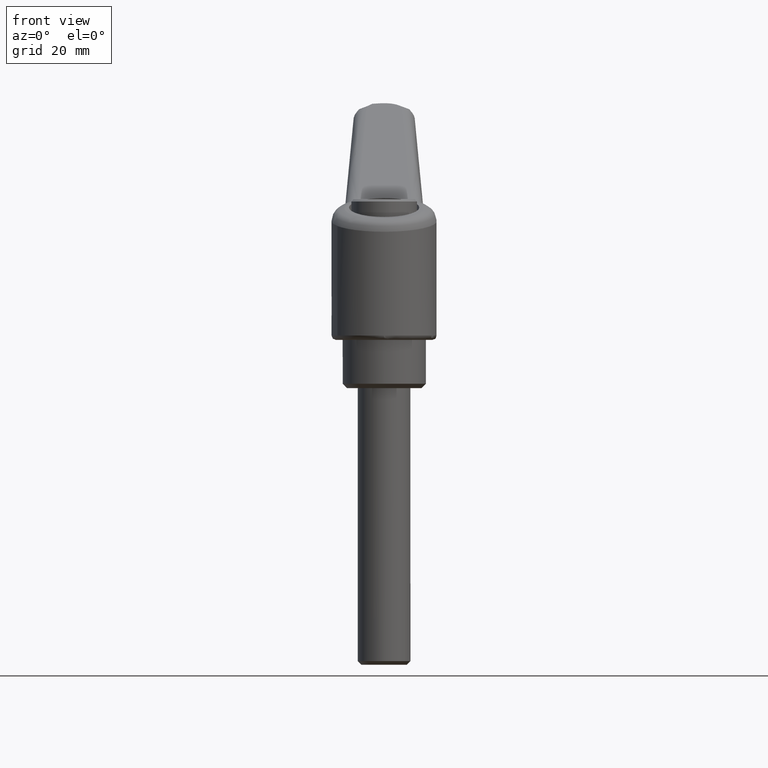
[diagram: clean part render]
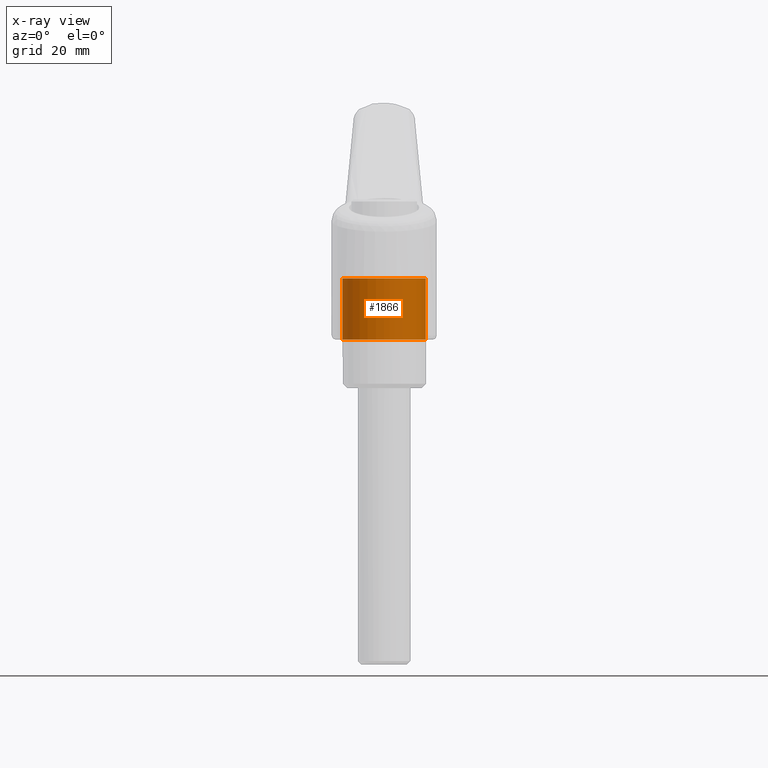
[diagram: x-ray — body ghosted, one internal face saturated and labeled with its STEP entity id]
A machine part, front view, then the same camera in x-ray: the body is ghosted and one INTERNAL B-rep face — a face not visible from any outside direction — is saturated and labeled: STEP entity #1866.
In plain terms, the highlighted face is a freeform B-spline surface patch.
Its self-contained STEP definition (entity closure, byte-faithful):
#1764=CARTESIAN_POINT('',(1.121325229239206,-9.433590500454830,25.350000000000009));
#1765=CARTESIAN_POINT('',(0.851339922060788,-9.465682346761753,25.350000000000012));
#1766=CARTESIAN_POINT('',(0.579961125581141,-9.482280585007734,25.350000000000009));
#1767=CARTESIAN_POINT('',(-8.902319459426593,-10.062241710588875,25.350000000000012));
#1768=CARTESIAN_POINT('',(-9.482280585007734,-0.579961125581141,25.350000000000009));
#1769=CARTESIAN_POINT('',(-10.062241710588875,8.902319459426593,25.350000000000012));
#1770=CARTESIAN_POINT('',(-0.579961125581141,9.482280585007734,25.350000000000009));
#1771=CARTESIAN_POINT('',(1.121325229239206,-9.433590500454830,10.641249999999998));
#1772=CARTESIAN_POINT('',(0.851339922060788,-9.465682346761753,10.641249999999996));
#1773=CARTESIAN_POINT('',(0.579961125581141,-9.482280585007734,10.641249999999999));
#1774=CARTESIAN_POINT('',(-8.902319459426593,-10.062241710588875,10.641249999999998));
#1775=CARTESIAN_POINT('',(-9.482280585007734,-0.579961125581141,10.641249999999999));
#1776=CARTESIAN_POINT('',(-10.062241710588875,8.902319459426593,10.641249999999998));
#1777=CARTESIAN_POINT('',(-0.579961125581141,9.482280585007734,10.641249999999999));
#1785=(BOUNDED_SURFACE()B_SPLINE_SURFACE(2,1,((#1764,#1771),(#1765,#1772),(#1766,#1773),(#1767,#1774),(#1768,#1775),(#1769,#1776),(#1770,#1777)),.UNSPECIFIED.,.F.,.F.,.U.)B_SPLINE_SURFACE_WITH_KNOTS((3,2,2,3),(2,2),(0.0,0.629604614807105,16.369719984984709,32.109835355162318),(0.0,14.708750000000011),.UNSPECIFIED.)GEOMETRIC_REPRESENTATION_ITEM()RATIONAL_B_SPLINE_SURFACE(((0.977505800795127,0.977505800795127),(0.988284271247462,0.988284271247462),(1.0,1.0),(0.707106781186548,0.707106781186548),(1.0,1.0),(0.707106781186548,0.707106781186548),(1.0,1.0)))REPRESENTATION_ITEM('')SURFACE());
#1786=CARTESIAN_POINT('',(1.121313283763338,-9.433591920340373,10.999999999999840));
#1787=VERTEX_POINT('',#1786);
#1788=CARTESIAN_POINT('',(-9.500000000000000,0.0,11.0));
#1789=VERTEX_POINT('',#1788);
#1790=CARTESIAN_POINT('',(1.121313283763337,-9.433591920340373,10.999999999999842));
#1791=CARTESIAN_POINT('',(0.562623100813323,-9.500000000000000,11.000000000000005));
#1792=CARTESIAN_POINT('',(0.0,-9.500000000000000,11.0));
#1793=CARTESIAN_POINT('',(-9.500000000000000,-9.500000000000000,11.0));
#1794=CARTESIAN_POINT('',(-9.500000000000000,0.0,11.0));
#1802=(BOUNDED_CURVE()B_SPLINE_CURVE(2,(#1790,#1791,#1792,#1793,#1794),.UNSPECIFIED.,.F.,.U.)B_SPLINE_CURVE_WITH_KNOTS((3,2,3),(0.229562687519462,0.250000000000000,0.500000000000000),.UNSPECIFIED.)CURVE()GEOMETRIC_REPRESENTATION_ITEM()RATIONAL_B_SPLINE_CURVE((0.956027173644556,0.976056199054716,1.0,0.707106781186548,1.0))REPRESENTATION_ITEM(''));
#1803=EDGE_CURVE('',#1787,#1789,#1802,.T.);
#1804=ORIENTED_EDGE('',*,*,#1803,.T.);
#1805=CARTESIAN_POINT('',(-0.579961125736047,9.482280584998261,11.0));
#1806=VERTEX_POINT('',#1805);
#1807=CARTESIAN_POINT('',(-9.500000000000000,0.0,11.0));
#1808=CARTESIAN_POINT('',(-9.500000000000000,8.936707635311613,11.0));
#1809=CARTESIAN_POINT('',(-0.579961125736047,9.482280584998261,10.999999999999996));
#1817=(BOUNDED_CURVE()B_SPLINE_CURVE(2,(#1807,#1808,#1809),.UNSPECIFIED.,.F.,.U.)B_SPLINE_CURVE_WITH_KNOTS((3,3),(0.500000000000000,0.739332962236332),.UNSPECIFIED.)CURVE()GEOMETRIC_REPRESENTATION_ITEM()RATIONAL_B_SPLINE_CURVE((1.0,0.719603993289770,0.976072041661121))REPRESENTATION_ITEM(''));
#1818=EDGE_CURVE('',#1789,#1806,#1817,.T.);
#1819=ORIENTED_EDGE('',*,*,#1818,.T.);
#1820=CARTESIAN_POINT('',(-0.579961125736047,9.482280584998261,25.0));
#1821=VERTEX_POINT('',#1820);
#1822=CARTESIAN_POINT('',(-0.579961125736047,9.482280584998261,25.0));
#1823=CARTESIAN_POINT('',(-0.579961125736047,9.482280584998261,11.0));
#1824=QUASI_UNIFORM_CURVE('',1,(#1822,#1823),.UNSPECIFIED.,.F.,.U.);
#1825=EDGE_CURVE('',#1821,#1806,#1824,.T.);
#1826=ORIENTED_EDGE('',*,*,#1825,.F.);
#1827=CARTESIAN_POINT('',(-9.500000000000000,0.0,25.0));
#1828=VERTEX_POINT('',#1827);
#1829=CARTESIAN_POINT('',(-9.500000000000000,0.0,25.0));
#1830=CARTESIAN_POINT('',(-9.500000000000000,8.936707635311613,25.000000000000004));
#1831=CARTESIAN_POINT('',(-0.579961125736047,9.482280584998261,25.0));
#1839=(BOUNDED_CURVE()B_SPLINE_CURVE(2,(#1829,#1830,#1831),.UNSPECIFIED.,.F.,.U.)B_SPLINE_CURVE_WITH_KNOTS((3,3),(0.500000000000000,0.739332962236332),.UNSPECIFIED.)CURVE()GEOMETRIC_REPRESENTATION_ITEM()RATIONAL_B_SPLINE_CURVE((1.0,0.719603993289770,0.976072041661121))REPRESENTATION_ITEM(''));
#1840=EDGE_CURVE('',#1828,#1821,#1839,.T.);
#1841=ORIENTED_EDGE('',*,*,#1840,.F.);
#1842=CARTESIAN_POINT('',(1.121313431433341,-9.433591902787931,25.0));
#1843=VERTEX_POINT('',#1842);
#1844=CARTESIAN_POINT('',(1.121313431433341,-9.433591902787931,25.000000000000004));
#1845=CARTESIAN_POINT('',(0.562623175428872,-9.500000000000000,24.999999999999996));
#1846=CARTESIAN_POINT('',(0.0,-9.500000000000000,25.0));
#1847=CARTESIAN_POINT('',(-9.500000000000000,-9.500000000000000,25.0));
#1848=CARTESIAN_POINT('',(-9.500000000000000,0.0,25.0));
#1856=(BOUNDED_CURVE()B_SPLINE_CURVE(2,(#1844,#1845,#1846,#1847,#1848),.UNSPECIFIED.,.F.,.U.)B_SPLINE_CURVE_WITH_KNOTS((3,2,3),(0.229562684873946,0.250000000000000,0.500000000000000),.UNSPECIFIED.)CURVE()GEOMETRIC_REPRESENTATION_ITEM()RATIONAL_B_SPLINE_CURVE((0.956027168459226,0.976056195955301,1.0,0.707106781186548,1.0))REPRESENTATION_ITEM(''));
#1857=EDGE_CURVE('',#1843,#1828,#1856,.T.);
#1858=ORIENTED_EDGE('',*,*,#1857,.F.);
#1859=CARTESIAN_POINT('',(1.121313431433341,-9.433591902787931,25.0));
#1860=CARTESIAN_POINT('',(1.121313283763338,-9.433591920340373,10.999999999999840));
#1861=QUASI_UNIFORM_CURVE('',1,(#1859,#1860),.UNSPECIFIED.,.F.,.U.);
#1862=EDGE_CURVE('',#1843,#1787,#1861,.T.);
#1863=ORIENTED_EDGE('',*,*,#1862,.T.);
#1864=EDGE_LOOP('',(#1804,#1819,#1826,#1841,#1858,#1863));
#1865=FACE_OUTER_BOUND('',#1864,.T.);
#1866=ADVANCED_FACE('',(#1865),#1785,.F.);